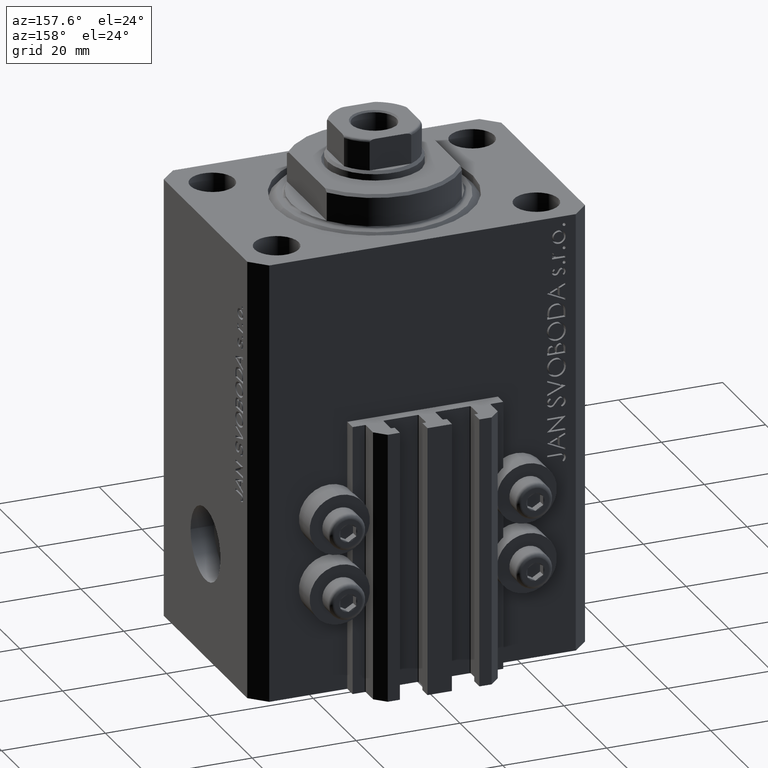
[diagram: clean part render]
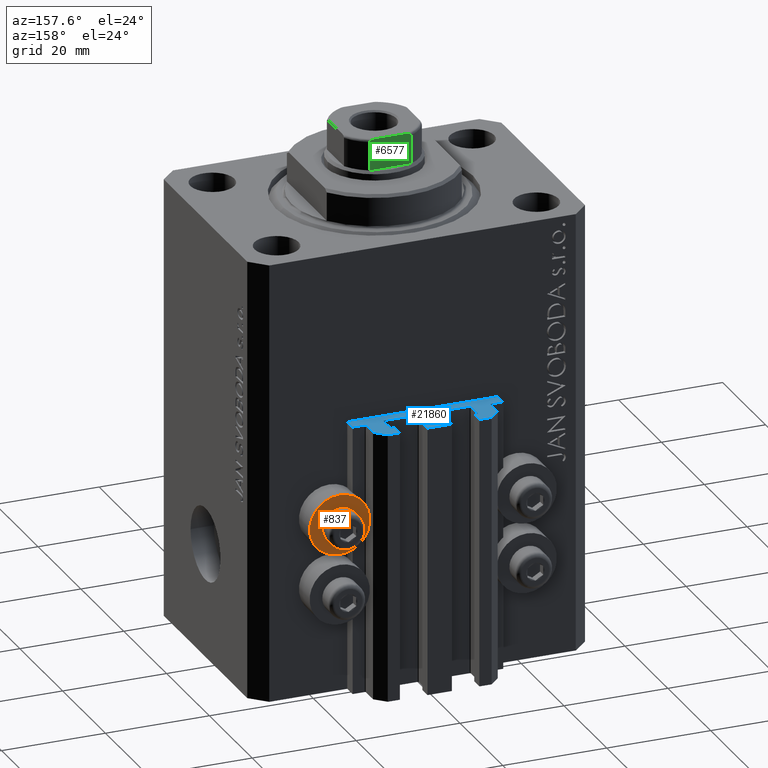
[diagram: same view with three faces highlighted in distinct colors, each labeled with its STEP entity id]
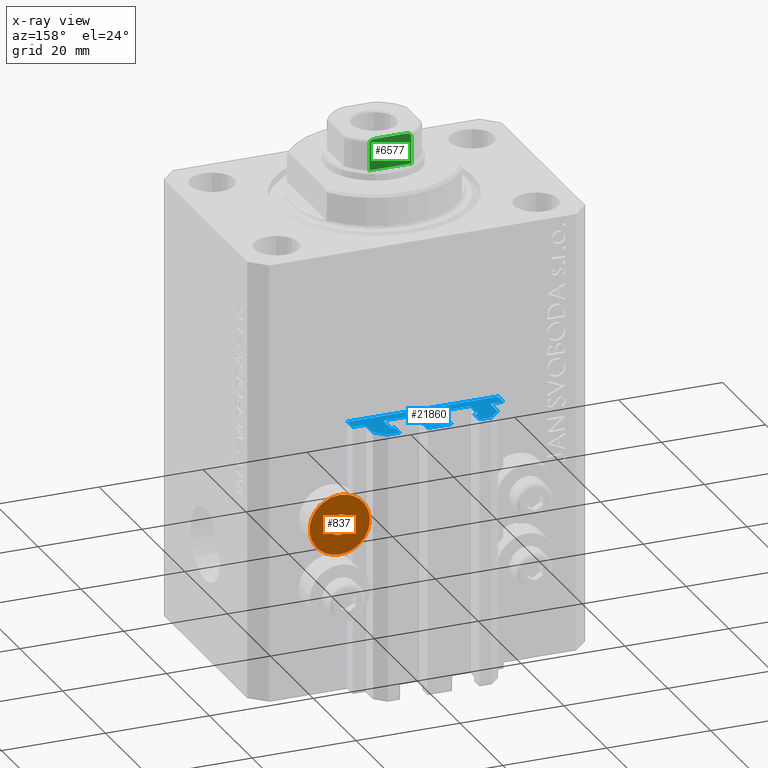
[diagram: x-ray of the same camera — body ghosted, the three highlighted faces saturated]
A machine part, auxiliary view with three faces highlighted in distinct colors.
The next image is the same camera in x-ray (body ghosted, the three faces saturated) — at least one of them is partly hidden behind the body in this view.
Their STEP definitions:

[orange] entity #837 — the highlighted planar face has unit normal (0, -1, 0).
#682 = VERTEX_POINT ( 'NONE', #18957 ) ;
#837 = ADVANCED_FACE ( 'NONE', ( #9585, #28059 ), #35475, .F. ) ;
#1259 = DIRECTION ( 'NONE',  ( 0.000000000000000000, 0.000000000000000000, 1.000000000000000000 ) ) ;
#1571 = CIRCLE ( 'NONE', #38381, 5.799999999999999822 ) ;
#2851 = DIRECTION ( 'NONE',  ( -0.000000000000000000, -1.000000000000000000, -0.000000000000000000 ) ) ;
#3085 = EDGE_LOOP ( 'NONE', ( #6401, #13300 ) ) ;
#3312 = AXIS2_PLACEMENT_3D ( 'NONE', #13878, #46514, #9813 ) ;
#3987 = EDGE_CURVE ( 'NONE', #41161, #45822, #14117, .T. ) ;
#4406 = CARTESIAN_POINT ( 'NONE',  ( 18.00000000000000355, 27.49999999996051514, -52.40000000000000568 ) ) ;
#6401 = ORIENTED_EDGE ( 'NONE', *, *, #3987, .T. ) ;
#9585 = FACE_BOUND ( 'NONE', #3085, .T. ) ;
#9813 = DIRECTION ( 'NONE',  ( -0.000000000000000000, 0.000000000000000000, -1.000000000000000000 ) ) ;
#10055 = AXIS2_PLACEMENT_3D ( 'NONE', #21795, #32574, #11221 ) ;
#11221 = DIRECTION ( 'NONE',  ( 0.000000000000000000, 0.000000000000000000, 1.000000000000000000 ) ) ;
#13300 = ORIENTED_EDGE ( 'NONE', *, *, #44054, .T. ) ;
#13878 = CARTESIAN_POINT ( 'NONE',  ( 12.20000000000000284, 27.49999999996051514, -50.39999999999999858 ) ) ;
#14117 = CIRCLE ( 'NONE', #40913, 2.000000000000001776 ) ;
#16935 = CIRCLE ( 'NONE', #10055, 5.799999999999999822 ) ;
#18957 = CARTESIAN_POINT ( 'NONE',  ( 18.00000000000000355, 27.49999999996051514, -56.20000000000000284 ) ) ;
#20649 = EDGE_CURVE ( 'NONE', #47048, #682, #1571, .T. ) ;
#21795 = CARTESIAN_POINT ( 'NONE',  ( 18.00000000000000355, 27.49999999996051514, -50.39999999999999858 ) ) ;
#24818 = ORIENTED_EDGE ( 'NONE', *, *, #25482, .F. ) ;
#25482 = EDGE_CURVE ( 'NONE', #682, #47048, #16935, .T. ) ;
#25844 = CARTESIAN_POINT ( 'NONE',  ( 18.00000000000000355, 27.49999999996051514, -48.39999999999999858 ) ) ;
#27698 = CARTESIAN_POINT ( 'NONE',  ( 18.00000000000000355, 27.49999999996051514, -50.39999999999999858 ) ) ;
#27840 = CARTESIAN_POINT ( 'NONE',  ( 18.00000000000000355, 27.49999999996051514, -50.39999999999999858 ) ) ;
#27932 = DIRECTION ( 'NONE',  ( 0.000000000000000000, 0.000000000000000000, 1.000000000000000000 ) ) ;
#28059 = FACE_OUTER_BOUND ( 'NONE', #31886, .T. ) ;
#30067 = CARTESIAN_POINT ( 'NONE',  ( 18.00000000000000355, 27.49999999996051514, -50.39999999999999858 ) ) ;
#31886 = EDGE_LOOP ( 'NONE', ( #40732, #24818 ) ) ;
#32574 = DIRECTION ( 'NONE',  ( -0.000000000000000000, -1.000000000000000000, -0.000000000000000000 ) ) ;
#33946 = CARTESIAN_POINT ( 'NONE',  ( 18.00000000000000355, 27.49999999996051514, -44.60000000000000142 ) ) ;
#35475 = PLANE ( 'NONE',  #3312 ) ;
#38381 = AXIS2_PLACEMENT_3D ( 'NONE', #27698, #42078, #27932 ) ;
#40318 = CIRCLE ( 'NONE', #46476, 2.000000000000001776 ) ;
#40732 = ORIENTED_EDGE ( 'NONE', *, *, #20649, .F. ) ;
#40913 = AXIS2_PLACEMENT_3D ( 'NONE', #27840, #2851, #43401 ) ;
#41161 = VERTEX_POINT ( 'NONE', #25844 ) ;
#42078 = DIRECTION ( 'NONE',  ( -0.000000000000000000, -1.000000000000000000, -0.000000000000000000 ) ) ;
#43401 = DIRECTION ( 'NONE',  ( 0.000000000000000000, 0.000000000000000000, 1.000000000000000000 ) ) ;
#44054 = EDGE_CURVE ( 'NONE', #45822, #41161, #40318, .T. ) ;
#44702 = DIRECTION ( 'NONE',  ( -0.000000000000000000, -1.000000000000000000, -0.000000000000000000 ) ) ;
#45822 = VERTEX_POINT ( 'NONE', #4406 ) ;
#46476 = AXIS2_PLACEMENT_3D ( 'NONE', #30067, #44702, #1259 ) ;
#46514 = DIRECTION ( 'NONE',  ( 0.000000000000000000, -1.000000000000000000, -0.000000000000000000 ) ) ;
#47048 = VERTEX_POINT ( 'NONE', #33946 ) ;

[blue] entity #21860 — the highlighted planar face has unit normal (0, 0, 1).
#76 = EDGE_CURVE ( 'NONE', #20158, #46686, #34947, .T. ) ;
#420 = LINE ( 'NONE', #40257, #10322 ) ;
#586 = EDGE_CURVE ( 'NONE', #6469, #2376, #2664, .T. ) ;
#623 = CARTESIAN_POINT ( 'NONE',  ( -12.00000000000000000, 28.49999999999948841, -33.00000000000000000 ) ) ;
#774 = AXIS2_PLACEMENT_3D ( 'NONE', #45008, #29901, #41643 ) ;
#818 = CARTESIAN_POINT ( 'NONE',  ( 2.349999999999999645, 28.09999999999950049, -33.00000000000000000 ) ) ;
#1061 = DIRECTION ( 'NONE',  ( -1.000000000000000000, 0.000000000000000000, 0.000000000000000000 ) ) ;
#1079 = CARTESIAN_POINT ( 'NONE',  ( -7.650000000000000355, 30.49999999999948486, -33.00000000000000000 ) ) ;
#1098 = VERTEX_POINT ( 'NONE', #11927 ) ;
#1505 = ORIENTED_EDGE ( 'NONE', *, *, #31756, .T. ) ;
#1608 = VECTOR ( 'NONE', #29695, 1000.000000000000000 ) ;
#1666 = LINE ( 'NONE', #37907, #47500 ) ;
#1681 = LINE ( 'NONE', #9374, #24178 ) ;
#1703 = LINE ( 'NONE', #23569, #18633 ) ;
#1969 = CARTESIAN_POINT ( 'NONE',  ( -8.199999999999999289, 24.49999999999949551, -33.00000000000000000 ) ) ;
#2216 = CARTESIAN_POINT ( 'NONE',  ( -1.600000000000000755, 24.69999999999949480, -33.00000000000000000 ) ) ;
#2313 = CARTESIAN_POINT ( 'NONE',  ( -12.00000000000000000, 25.19999999999949125, -33.00000000000000000 ) ) ;
#2376 = VERTEX_POINT ( 'NONE', #2313 ) ;
#2600 = FACE_OUTER_BOUND ( 'NONE', #32625, .T. ) ;
#2604 = EDGE_CURVE ( 'NONE', #47329, #18389, #36587, .T. ) ;
#2660 = CARTESIAN_POINT ( 'NONE',  ( -2.350000000000003197, 28.09999999999950049, -33.00000000000000000 ) ) ;
#2664 = LINE ( 'NONE', #46337, #7870 ) ;
#2888 = LINE ( 'NONE', #13925, #40226 ) ;
#4036 = CARTESIAN_POINT ( 'NONE',  ( 9.999999999999994671, 30.49999999999949551, -33.00000000000000000 ) ) ;
#4092 = AXIS2_PLACEMENT_3D ( 'NONE', #22800, #16308, #40770 ) ;
#4107 = EDGE_CURVE ( 'NONE', #11860, #13965, #42474, .T. ) ;
#4183 = ORIENTED_EDGE ( 'NONE', *, *, #34118, .F. ) ;
#4343 = CARTESIAN_POINT ( 'NONE',  ( -14.50000000000000000, 22.49999999999949907, -33.00000000000000000 ) ) ;
#4851 = AXIS2_PLACEMENT_3D ( 'NONE', #26398, #41020, #37413 ) ;
#4955 = DIRECTION ( 'NONE',  ( -5.421010862427496532E-16, -1.000000000000000000, 0.000000000000000000 ) ) ;
#5023 = VERTEX_POINT ( 'NONE', #33834 ) ;
#5159 = DIRECTION ( 'NONE',  ( 1.000000000000000000, 0.000000000000000000, 0.000000000000000000 ) ) ;
#5299 = CARTESIAN_POINT ( 'NONE',  ( -8.400000000000000355, 24.69999999999949480, -33.00000000000000000 ) ) ;
#5934 = CARTESIAN_POINT ( 'NONE',  ( -8.399999999999996803, 27.89999999999948699, -33.00000000000000000 ) ) ;
#5980 = ORIENTED_EDGE ( 'NONE', *, *, #10430, .T. ) ;
#6114 = VECTOR ( 'NONE', #14613, 1000.000000000000000 ) ;
#6131 = EDGE_CURVE ( 'NONE', #24084, #19889, #2888, .T. ) ;
#6265 = DIRECTION ( 'NONE',  ( 0.000000000000000000, -1.000000000000000000, 0.000000000000000000 ) ) ;
#6469 = VERTEX_POINT ( 'NONE', #623 ) ;
#7353 = DIRECTION ( 'NONE',  ( -0.7071067811865472397, -0.7071067811865479058, 0.000000000000000000 ) ) ;
#7504 = CARTESIAN_POINT ( 'NONE',  ( 14.49999999999999822, 24.99999999999950617, -33.00000000000000000 ) ) ;
#7870 = VECTOR ( 'NONE', #6265, 1000.000000000000000 ) ;
#8122 = DIRECTION ( 'NONE',  ( 0.000000000000000000, 0.000000000000000000, 1.000000000000000000 ) ) ;
#8370 = CARTESIAN_POINT ( 'NONE',  ( 8.200000000000001066, 24.49999999999949196, -33.00000000000000000 ) ) ;
#8427 = CIRCLE ( 'NONE', #774, 0.1999999999999987899 ) ;
#8501 = AXIS2_PLACEMENT_3D ( 'NONE', #39767, #46510, #20867 ) ;
#8837 = DIRECTION ( 'NONE',  ( 1.000000000000000000, 0.000000000000000000, 0.000000000000000000 ) ) ;
#8911 = VERTEX_POINT ( 'NONE', #1079 ) ;
#9150 = ORIENTED_EDGE ( 'NONE', *, *, #32219, .T. ) ;
#9193 = DIRECTION ( 'NONE',  ( 1.000000000000000000, 0.000000000000000000, 0.000000000000000000 ) ) ;
#9374 = CARTESIAN_POINT ( 'NONE',  ( 12.00000000000000178, 25.19999999999951257, -33.00000000000000000 ) ) ;
#9644 = VECTOR ( 'NONE', #37100, 1000.000000000000000 ) ;
#10188 = VECTOR ( 'NONE', #38296, 1000.000000000000000 ) ;
#10282 = CARTESIAN_POINT ( 'NONE',  ( 12.00000000000000355, 25.19999999999951257, -33.00000000000000000 ) ) ;
#10322 = VECTOR ( 'NONE', #22287, 1000.000000000000000 ) ;
#10421 = DIRECTION ( 'NONE',  ( 1.000000000000000000, 0.000000000000000000, 0.000000000000000000 ) ) ;
#10430 = EDGE_CURVE ( 'NONE', #39637, #17830, #42488, .T. ) ;
#10442 = ORIENTED_EDGE ( 'NONE', *, *, #23414, .T. ) ;
#10560 = VERTEX_POINT ( 'NONE', #34454 ) ;
#11033 = VECTOR ( 'NONE', #19148, 1000.000000000000000 ) ;
#11153 = VERTEX_POINT ( 'NONE', #21445 ) ;
#11203 = LINE ( 'NONE', #33250, #16521 ) ;
#11380 = ORIENTED_EDGE ( 'NONE', *, *, #27544, .F. ) ;
#11501 = CARTESIAN_POINT ( 'NONE',  ( -12.20000000000000107, 24.99999999999948841, -33.00000000000000000 ) ) ;
#11860 = VERTEX_POINT ( 'NONE', #10282 ) ;
#11927 = CARTESIAN_POINT ( 'NONE',  ( -8.199999999999997513, 28.09999999999948628, -33.00000000000000000 ) ) ;
#12265 = VERTEX_POINT ( 'NONE', #34354 ) ;
#12307 = CIRCLE ( 'NONE', #31456, 0.1999999999999987899 ) ;
#12365 = ORIENTED_EDGE ( 'NONE', *, *, #26472, .T. ) ;
#12440 = VERTEX_POINT ( 'NONE', #22566 ) ;
#13179 = DIRECTION ( 'NONE',  ( 6.938893903907212600E-16, 1.000000000000000000, 0.000000000000000000 ) ) ;
#13186 = CARTESIAN_POINT ( 'NONE',  ( -1.800000000000000933, 24.49999999999949551, -33.00000000000000000 ) ) ;
#13547 = EDGE_CURVE ( 'NONE', #14323, #24084, #18010, .T. ) ;
#13605 = VERTEX_POINT ( 'NONE', #8370 ) ;
#13867 = ORIENTED_EDGE ( 'NONE', *, *, #39152, .T. ) ;
#13925 = CARTESIAN_POINT ( 'NONE',  ( -14.50000000000000000, 24.99999999999949196, -33.00000000000000000 ) ) ;
#13965 = VERTEX_POINT ( 'NONE', #40941 ) ;
#14244 = VERTEX_POINT ( 'NONE', #15229 ) ;
#14323 = VERTEX_POINT ( 'NONE', #23631 ) ;
#14479 = DIRECTION ( 'NONE',  ( -1.000000000000000000, -1.476360405086644852E-15, 0.000000000000000000 ) ) ;
#14548 = VERTEX_POINT ( 'NONE', #18538 ) ;
#14613 = DIRECTION ( 'NONE',  ( -1.000000000000000000, 0.000000000000000000, 0.000000000000000000 ) ) ;
#14808 = CARTESIAN_POINT ( 'NONE',  ( 1.600000000000000533, 24.69999999999949480, -33.00000000000000000 ) ) ;
#15088 = CARTESIAN_POINT ( 'NONE',  ( 8.400000000000000355, 24.69999999999949125, -33.00000000000000000 ) ) ;
#15229 = CARTESIAN_POINT ( 'NONE',  ( -10.00000000000000000, 30.49999999999948841, -33.00000000000000000 ) ) ;
#15301 = DIRECTION ( 'NONE',  ( 0.000000000000000000, 0.000000000000000000, 1.000000000000000000 ) ) ;
#15390 = VERTEX_POINT ( 'NONE', #1969 ) ;
#15443 = CARTESIAN_POINT ( 'NONE',  ( 12.00000000000000178, 28.49999999999950973, -33.00000000000000000 ) ) ;
#15540 = LINE ( 'NONE', #22515, #11033 ) ;
#15615 = VECTOR ( 'NONE', #18599, 1000.000000000000000 ) ;
#16308 = DIRECTION ( 'NONE',  ( 0.000000000000000000, 0.000000000000000000, 1.000000000000000000 ) ) ;
#16490 = VECTOR ( 'NONE', #19961, 1000.000000000000000 ) ;
#16521 = VECTOR ( 'NONE', #28970, 1000.000000000000000 ) ;
#16977 = VECTOR ( 'NONE', #1061, 1000.000000000000000 ) ;
#17299 = CARTESIAN_POINT ( 'NONE',  ( -1.600000000000003197, 27.89999999999950120, -33.00000000000000000 ) ) ;
#17376 = VERTEX_POINT ( 'NONE', #29632 ) ;
#17383 = AXIS2_PLACEMENT_3D ( 'NONE', #34510, #8122, #8837 ) ;
#17502 = ORIENTED_EDGE ( 'NONE', *, *, #32698, .T. ) ;
#17777 = CARTESIAN_POINT ( 'NONE',  ( -8.399999999999998579, 24.69999999999949480, -33.00000000000000000 ) ) ;
#17830 = VERTEX_POINT ( 'NONE', #34343 ) ;
#18010 = LINE ( 'NONE', #11501, #22005 ) ;
#18222 = CARTESIAN_POINT ( 'NONE',  ( 8.200000000000001066, 24.49999999999949196, -33.00000000000000000 ) ) ;
#18234 = ORIENTED_EDGE ( 'NONE', *, *, #40669, .T. ) ;
#18335 = ORIENTED_EDGE ( 'NONE', *, *, #19576, .T. ) ;
#18389 = VERTEX_POINT ( 'NONE', #36640 ) ;
#18538 = CARTESIAN_POINT ( 'NONE',  ( 1.800000000000000933, 28.09999999999950049, -33.00000000000000000 ) ) ;
#18599 = DIRECTION ( 'NONE',  ( 0.000000000000000000, 1.000000000000000000, 0.000000000000000000 ) ) ;
#18633 = VECTOR ( 'NONE', #38182, 1000.000000000000000 ) ;
#18764 = VERTEX_POINT ( 'NONE', #15088 ) ;
#18799 = LINE ( 'NONE', #40609, #38956 ) ;
#18807 = EDGE_CURVE ( 'NONE', #13605, #17376, #26130, .T. ) ;
#18902 = VERTEX_POINT ( 'NONE', #4036 ) ;
#18912 = CIRCLE ( 'NONE', #17383, 0.2000000000000005107 ) ;
#19048 = LINE ( 'NONE', #41107, #38206 ) ;
#19148 = DIRECTION ( 'NONE',  ( 1.000000000000000000, 0.000000000000000000, 0.000000000000000000 ) ) ;
#19348 = EDGE_CURVE ( 'NONE', #32375, #15390, #8427, .T. ) ;
#19576 = EDGE_CURVE ( 'NONE', #37319, #18902, #33664, .T. ) ;
#19677 = ORIENTED_EDGE ( 'NONE', *, *, #42196, .T. ) ;
#19889 = VERTEX_POINT ( 'NONE', #4343 ) ;
#19921 = LINE ( 'NONE', #34777, #43028 ) ;
#19961 = DIRECTION ( 'NONE',  ( 1.084202172485506406E-15, 1.000000000000000000, 0.000000000000000000 ) ) ;
#20008 = CARTESIAN_POINT ( 'NONE',  ( -1.800000000000000933, 27.89999999999950120, -33.00000000000000000 ) ) ;
#20029 = CARTESIAN_POINT ( 'NONE',  ( -14.50000000000000000, 24.99999999999949196, -33.00000000000000000 ) ) ;
#20158 = VERTEX_POINT ( 'NONE', #17299 ) ;
#20204 = VECTOR ( 'NONE', #31460, 1000.000000000000000 ) ;
#20244 = VECTOR ( 'NONE', #4955, 1000.000000000000000 ) ;
#20569 = EDGE_CURVE ( 'NONE', #13605, #18764, #12307, .T. ) ;
#20867 = DIRECTION ( 'NONE',  ( 1.000000000000000000, 0.000000000000000000, -0.000000000000000000 ) ) ;
#21445 = CARTESIAN_POINT ( 'NONE',  ( 14.49999999999999822, 24.99999999999950617, -33.00000000000000000 ) ) ;
#21565 = PLANE ( 'NONE',  #8501 ) ;
#21720 = ORIENTED_EDGE ( 'NONE', *, *, #35700, .T. ) ;
#21765 = CIRCLE ( 'NONE', #4092, 0.1999999999999981515 ) ;
#21801 = AXIS2_PLACEMENT_3D ( 'NONE', #35489, #28544, #25182 ) ;
#21809 = DIRECTION ( 'NONE',  ( 0.000000000000000000, -1.000000000000000000, 0.000000000000000000 ) ) ;
#21860 = ADVANCED_FACE ( 'NONE', ( #2600 ), #21565, .T. ) ;
#22005 = VECTOR ( 'NONE', #47255, 1000.000000000000000 ) ;
#22103 = ORIENTED_EDGE ( 'NONE', *, *, #34564, .T. ) ;
#22158 = DIRECTION ( 'NONE',  ( -1.000000000000000000, 0.000000000000000000, 0.000000000000000000 ) ) ;
#22287 = DIRECTION ( 'NONE',  ( -1.000000000000000000, 1.476360405086644852E-15, 0.000000000000000000 ) ) ;
#22515 = CARTESIAN_POINT ( 'NONE',  ( -8.199999999999997513, 28.09999999999948628, -33.00000000000000000 ) ) ;
#22566 = CARTESIAN_POINT ( 'NONE',  ( 1.599999999999999645, 24.69999999999949480, -33.00000000000000000 ) ) ;
#22621 = VECTOR ( 'NONE', #7353, 999.9999999999998863 ) ;
#22800 = CARTESIAN_POINT ( 'NONE',  ( 1.800000000000000933, 27.89999999999950120, -33.00000000000000000 ) ) ;
#23126 = DIRECTION ( 'NONE',  ( 1.000000000000000000, 0.000000000000000000, 0.000000000000000000 ) ) ;
#23414 = EDGE_CURVE ( 'NONE', #11153, #13965, #25768, .T. ) ;
#23569 = CARTESIAN_POINT ( 'NONE',  ( 7.649999999999995026, 30.49999999999949196, -33.00000000000000000 ) ) ;
#23631 = CARTESIAN_POINT ( 'NONE',  ( -12.20000000000000107, 24.99999999999948841, -33.00000000000000000 ) ) ;
#23673 = EDGE_CURVE ( 'NONE', #41270, #8911, #1666, .T. ) ;
#24084 = VERTEX_POINT ( 'NONE', #20029 ) ;
#24175 = CARTESIAN_POINT ( 'NONE',  ( 14.49999999999999645, 22.49999999999949907, -33.00000000000000000 ) ) ;
#24178 = VECTOR ( 'NONE', #41515, 1000.000000000000000 ) ;
#24801 = CARTESIAN_POINT ( 'NONE',  ( 1.600000000000000533, 27.89999999999950120, -33.00000000000000000 ) ) ;
#24806 = CARTESIAN_POINT ( 'NONE',  ( 12.00000000000000178, 28.49999999999950973, -33.00000000000000000 ) ) ;
#24852 = VERTEX_POINT ( 'NONE', #28466 ) ;
#25182 = DIRECTION ( 'NONE',  ( 1.000000000000000000, 0.000000000000000000, 0.000000000000000000 ) ) ;
#25311 = ORIENTED_EDGE ( 'NONE', *, *, #13547, .T. ) ;
#25563 = EDGE_CURVE ( 'NONE', #12440, #45212, #44091, .T. ) ;
#25768 = LINE ( 'NONE', #7504, #43681 ) ;
#26069 = LINE ( 'NONE', #40209, #22621 ) ;
#26084 = CARTESIAN_POINT ( 'NONE',  ( 1.800000000000000933, 28.09999999999949694, -33.00000000000000000 ) ) ;
#26130 = LINE ( 'NONE', #18222, #6114 ) ;
#26393 = VERTEX_POINT ( 'NONE', #13186 ) ;
#26398 = CARTESIAN_POINT ( 'NONE',  ( -8.199999999999997513, 27.89999999999948699, -33.00000000000000000 ) ) ;
#26472 = EDGE_CURVE ( 'NONE', #24852, #37956, #43394, .T. ) ;
#26700 = AXIS2_PLACEMENT_3D ( 'NONE', #38504, #38036, #5159 ) ;
#26731 = CARTESIAN_POINT ( 'NONE',  ( 8.200000000000001066, 24.69999999999949125, -33.00000000000000000 ) ) ;
#26855 = EDGE_CURVE ( 'NONE', #32811, #11153, #19921, .T. ) ;
#27488 = EDGE_CURVE ( 'NONE', #26393, #15390, #45214, .T. ) ;
#27544 = EDGE_CURVE ( 'NONE', #12440, #17376, #35351, .T. ) ;
#27579 = ORIENTED_EDGE ( 'NONE', *, *, #26855, .T. ) ;
#28044 = ORIENTED_EDGE ( 'NONE', *, *, #44968, .F. ) ;
#28466 = CARTESIAN_POINT ( 'NONE',  ( -2.350000000000003197, 30.49999999999949907, -33.00000000000000000 ) ) ;
#28544 = DIRECTION ( 'NONE',  ( 0.000000000000000000, 0.000000000000000000, 1.000000000000000000 ) ) ;
#28970 = DIRECTION ( 'NONE',  ( 1.000000000000000000, 0.000000000000000000, 0.000000000000000000 ) ) ;
#29434 = ORIENTED_EDGE ( 'NONE', *, *, #76, .T. ) ;
#29446 = LINE ( 'NONE', #26084, #9644 ) ;
#29485 = EDGE_CURVE ( 'NONE', #20158, #12265, #43840, .T. ) ;
#29509 = ORIENTED_EDGE ( 'NONE', *, *, #20569, .F. ) ;
#29632 = CARTESIAN_POINT ( 'NONE',  ( 1.800000000000000933, 24.49999999999949196, -33.00000000000000000 ) ) ;
#29695 = DIRECTION ( 'NONE',  ( 0.000000000000000000, 1.000000000000000000, 0.000000000000000000 ) ) ;
#29854 = ORIENTED_EDGE ( 'NONE', *, *, #46335, .F. ) ;
#29901 = DIRECTION ( 'NONE',  ( 0.000000000000000000, 0.000000000000000000, 1.000000000000000000 ) ) ;
#29908 = VECTOR ( 'NONE', #44711, 1000.000000000000000 ) ;
#29995 = DIRECTION ( 'NONE',  ( 0.000000000000000000, 1.000000000000000000, 0.000000000000000000 ) ) ;
#30342 = CARTESIAN_POINT ( 'NONE',  ( -1.800000000000000933, 24.49999999999949551, -33.00000000000000000 ) ) ;
#30735 = CARTESIAN_POINT ( 'NONE',  ( 7.649999999999995914, 28.09999999999950404, -33.00000000000000000 ) ) ;
#30786 = DIRECTION ( 'NONE',  ( 0.000000000000000000, 0.000000000000000000, 1.000000000000000000 ) ) ;
#31189 = ORIENTED_EDGE ( 'NONE', *, *, #23673, .T. ) ;
#31456 = AXIS2_PLACEMENT_3D ( 'NONE', #26731, #44959, #37046 ) ;
#31460 = DIRECTION ( 'NONE',  ( 1.000000000000000000, -6.308085367188365195E-15, 0.000000000000000000 ) ) ;
#31756 = EDGE_CURVE ( 'NONE', #37956, #12265, #35292, .T. ) ;
#32219 = EDGE_CURVE ( 'NONE', #10560, #39637, #1703, .T. ) ;
#32375 = VERTEX_POINT ( 'NONE', #17777 ) ;
#32500 = CIRCLE ( 'NONE', #33239, 0.2000000000000005107 ) ;
#32625 = EDGE_LOOP ( 'NONE', ( #38761, #39694, #27579, #10442, #35032, #18234, #18335, #34536, #9150, #5980, #44333, #17502, #29509, #39467, #11380, #43375, #35247, #19677, #41986, #28044, #12365, #1505, #33573, #29434, #29854, #40874, #39660, #13867, #33579, #39780, #31189, #22103, #21720, #35732, #4183, #25311 ) ) ;
#32698 = EDGE_CURVE ( 'NONE', #5023, #18764, #37830, .T. ) ;
#32806 = CIRCLE ( 'NONE', #26700, 0.1999999999999994282 ) ;
#32811 = VERTEX_POINT ( 'NONE', #24175 ) ;
#33239 = AXIS2_PLACEMENT_3D ( 'NONE', #33760, #15301, #34488 ) ;
#33249 = EDGE_CURVE ( 'NONE', #14548, #45212, #21765, .T. ) ;
#33250 = CARTESIAN_POINT ( 'NONE',  ( -14.50000000000000000, 22.49999999999949907, -33.00000000000000000 ) ) ;
#33286 = EDGE_CURVE ( 'NONE', #1098, #34292, #37056, .T. ) ;
#33573 = ORIENTED_EDGE ( 'NONE', *, *, #29485, .F. ) ;
#33579 = ORIENTED_EDGE ( 'NONE', *, *, #33286, .F. ) ;
#33664 = LINE ( 'NONE', #15443, #29908 ) ;
#33760 = CARTESIAN_POINT ( 'NONE',  ( -12.20000000000000107, 25.19999999999949125, -33.00000000000000000 ) ) ;
#33834 = CARTESIAN_POINT ( 'NONE',  ( 8.400000000000000355, 27.89999999999950475, -33.00000000000000000 ) ) ;
#34118 = EDGE_CURVE ( 'NONE', #14323, #2376, #32500, .T. ) ;
#34210 = EDGE_CURVE ( 'NONE', #1098, #41270, #15540, .T. ) ;
#34292 = VERTEX_POINT ( 'NONE', #5934 ) ;
#34343 = CARTESIAN_POINT ( 'NONE',  ( 8.200000000000001066, 28.09999999999950759, -33.00000000000000000 ) ) ;
#34354 = CARTESIAN_POINT ( 'NONE',  ( -1.800000000000000933, 28.09999999999949694, -33.00000000000000000 ) ) ;
#34454 = CARTESIAN_POINT ( 'NONE',  ( 7.649999999999995026, 30.49999999999949196, -33.00000000000000000 ) ) ;
#34488 = DIRECTION ( 'NONE',  ( 1.000000000000000000, 0.000000000000000000, 0.000000000000000000 ) ) ;
#34510 = CARTESIAN_POINT ( 'NONE',  ( 8.200000000000001066, 27.89999999999950475, -33.00000000000000000 ) ) ;
#34536 = ORIENTED_EDGE ( 'NONE', *, *, #46530, .T. ) ;
#34564 = EDGE_CURVE ( 'NONE', #8911, #14244, #420, .T. ) ;
#34777 = CARTESIAN_POINT ( 'NONE',  ( 14.49999999999999645, 22.49999999999949907, -33.00000000000000000 ) ) ;
#34947 = LINE ( 'NONE', #35175, #10188 ) ;
#35032 = ORIENTED_EDGE ( 'NONE', *, *, #4107, .F. ) ;
#35175 = CARTESIAN_POINT ( 'NONE',  ( -1.600000000000000533, 27.89999999999950120, -33.00000000000000000 ) ) ;
#35247 = ORIENTED_EDGE ( 'NONE', *, *, #33249, .F. ) ;
#35292 = LINE ( 'NONE', #2660, #20204 ) ;
#35351 = CIRCLE ( 'NONE', #40744, 0.2000000000000016209 ) ;
#35423 = AXIS2_PLACEMENT_3D ( 'NONE', #20008, #30786, #9193 ) ;
#35489 = CARTESIAN_POINT ( 'NONE',  ( 12.20000000000000284, 25.19999999999950546, -33.00000000000000000 ) ) ;
#35700 = EDGE_CURVE ( 'NONE', #14244, #6469, #26069, .T. ) ;
#35732 = ORIENTED_EDGE ( 'NONE', *, *, #586, .T. ) ;
#36587 = LINE ( 'NONE', #818, #15615 ) ;
#36640 = CARTESIAN_POINT ( 'NONE',  ( 2.349999999999999645, 30.49999999999949907, -33.00000000000000000 ) ) ;
#37046 = DIRECTION ( 'NONE',  ( 1.000000000000000000, 0.000000000000000000, 0.000000000000000000 ) ) ;
#37056 = CIRCLE ( 'NONE', #4851, 0.1999999999999987899 ) ;
#37100 = DIRECTION ( 'NONE',  ( 1.000000000000000000, 6.308085367188405427E-15, 0.000000000000000000 ) ) ;
#37319 = VERTEX_POINT ( 'NONE', #24806 ) ;
#37413 = DIRECTION ( 'NONE',  ( 1.000000000000000000, 0.000000000000000000, 0.000000000000000000 ) ) ;
#37830 = LINE ( 'NONE', #44089, #20244 ) ;
#37907 = CARTESIAN_POINT ( 'NONE',  ( -7.650000000000000355, 28.09999999999948628, -33.00000000000000000 ) ) ;
#37956 = VERTEX_POINT ( 'NONE', #46074 ) ;
#38036 = DIRECTION ( 'NONE',  ( 0.000000000000000000, 0.000000000000000000, 1.000000000000000000 ) ) ;
#38182 = DIRECTION ( 'NONE',  ( 3.614007241618365534E-16, -1.000000000000000000, 0.000000000000000000 ) ) ;
#38206 = VECTOR ( 'NONE', #23126, 1000.000000000000000 ) ;
#38296 = DIRECTION ( 'NONE',  ( -6.776263578034385456E-17, -1.000000000000000000, 0.000000000000000000 ) ) ;
#38504 = CARTESIAN_POINT ( 'NONE',  ( -1.800000000000000933, 24.69999999999949480, -33.00000000000000000 ) ) ;
#38761 = ORIENTED_EDGE ( 'NONE', *, *, #6131, .T. ) ;
#38956 = VECTOR ( 'NONE', #14479, 1000.000000000000000 ) ;
#39152 = EDGE_CURVE ( 'NONE', #32375, #34292, #42490, .T. ) ;
#39467 = ORIENTED_EDGE ( 'NONE', *, *, #18807, .T. ) ;
#39637 = VERTEX_POINT ( 'NONE', #45259 ) ;
#39660 = ORIENTED_EDGE ( 'NONE', *, *, #19348, .F. ) ;
#39694 = ORIENTED_EDGE ( 'NONE', *, *, #41150, .T. ) ;
#39767 = CARTESIAN_POINT ( 'NONE',  ( 12.20000000000000284, 25.19999999999950546, -33.00000000000000000 ) ) ;
#39780 = ORIENTED_EDGE ( 'NONE', *, *, #34210, .T. ) ;
#40015 = CARTESIAN_POINT ( 'NONE',  ( -2.350000000000003197, 30.49999999999949907, -33.00000000000000000 ) ) ;
#40056 = DIRECTION ( 'NONE',  ( 0.000000000000000000, -1.000000000000000000, 0.000000000000000000 ) ) ;
#40209 = CARTESIAN_POINT ( 'NONE',  ( -10.00000000000000000, 30.49999999999948841, -33.00000000000000000 ) ) ;
#40226 = VECTOR ( 'NONE', #40056, 1000.000000000000000 ) ;
#40257 = CARTESIAN_POINT ( 'NONE',  ( -7.650000000000000355, 30.49999999999948486, -33.00000000000000000 ) ) ;
#40609 = CARTESIAN_POINT ( 'NONE',  ( 9.999999999999994671, 30.49999999999949551, -33.00000000000000000 ) ) ;
#40669 = EDGE_CURVE ( 'NONE', #11860, #37319, #1681, .T. ) ;
#40744 = AXIS2_PLACEMENT_3D ( 'NONE', #45702, #42573, #10421 ) ;
#40770 = DIRECTION ( 'NONE',  ( 1.000000000000000000, 0.000000000000000000, 0.000000000000000000 ) ) ;
#40874 = ORIENTED_EDGE ( 'NONE', *, *, #27488, .T. ) ;
#40941 = CARTESIAN_POINT ( 'NONE',  ( 12.20000000000000284, 24.99999999999950617, -33.00000000000000000 ) ) ;
#41020 = DIRECTION ( 'NONE',  ( 0.000000000000000000, 0.000000000000000000, 1.000000000000000000 ) ) ;
#41107 = CARTESIAN_POINT ( 'NONE',  ( -2.350000000000003197, 30.49999999999949907, -33.00000000000000000 ) ) ;
#41150 = EDGE_CURVE ( 'NONE', #19889, #32811, #11203, .T. ) ;
#41270 = VERTEX_POINT ( 'NONE', #41409 ) ;
#41409 = CARTESIAN_POINT ( 'NONE',  ( -7.650000000000000355, 28.09999999999948628, -33.00000000000000000 ) ) ;
#41480 = VECTOR ( 'NONE', #21809, 1000.000000000000000 ) ;
#41515 = DIRECTION ( 'NONE',  ( 0.000000000000000000, 1.000000000000000000, 0.000000000000000000 ) ) ;
#41643 = DIRECTION ( 'NONE',  ( 1.000000000000000000, 0.000000000000000000, 0.000000000000000000 ) ) ;
#41986 = ORIENTED_EDGE ( 'NONE', *, *, #2604, .T. ) ;
#42196 = EDGE_CURVE ( 'NONE', #14548, #47329, #29446, .T. ) ;
#42474 = CIRCLE ( 'NONE', #21801, 0.1999999999999987899 ) ;
#42488 = LINE ( 'NONE', #30735, #43916 ) ;
#42490 = LINE ( 'NONE', #5299, #16490 ) ;
#42573 = DIRECTION ( 'NONE',  ( 0.000000000000000000, 0.000000000000000000, 1.000000000000000000 ) ) ;
#43028 = VECTOR ( 'NONE', #13179, 1000.000000000000000 ) ;
#43375 = ORIENTED_EDGE ( 'NONE', *, *, #25563, .T. ) ;
#43394 = LINE ( 'NONE', #40015, #41480 ) ;
#43681 = VECTOR ( 'NONE', #22158, 1000.000000000000000 ) ;
#43840 = CIRCLE ( 'NONE', #35423, 0.1999999999999979294 ) ;
#43916 = VECTOR ( 'NONE', #45367, 1000.000000000000000 ) ;
#44089 = CARTESIAN_POINT ( 'NONE',  ( 8.400000000000000355, 27.89999999999950475, -33.00000000000000000 ) ) ;
#44091 = LINE ( 'NONE', #14808, #1608 ) ;
#44276 = EDGE_CURVE ( 'NONE', #5023, #17830, #18912, .T. ) ;
#44333 = ORIENTED_EDGE ( 'NONE', *, *, #44276, .F. ) ;
#44699 = CARTESIAN_POINT ( 'NONE',  ( 2.349999999999999645, 28.09999999999950049, -33.00000000000000000 ) ) ;
#44711 = DIRECTION ( 'NONE',  ( -0.7071067811865507924, 0.7071067811865441310, 0.000000000000000000 ) ) ;
#44959 = DIRECTION ( 'NONE',  ( 0.000000000000000000, 0.000000000000000000, 1.000000000000000000 ) ) ;
#44968 = EDGE_CURVE ( 'NONE', #24852, #18389, #19048, .T. ) ;
#45008 = CARTESIAN_POINT ( 'NONE',  ( -8.199999999999999289, 24.69999999999949480, -33.00000000000000000 ) ) ;
#45212 = VERTEX_POINT ( 'NONE', #24801 ) ;
#45214 = LINE ( 'NONE', #30342, #16977 ) ;
#45259 = CARTESIAN_POINT ( 'NONE',  ( 7.649999999999995914, 28.09999999999950404, -33.00000000000000000 ) ) ;
#45367 = DIRECTION ( 'NONE',  ( 1.000000000000000000, 6.308085367188338373E-15, 0.000000000000000000 ) ) ;
#45702 = CARTESIAN_POINT ( 'NONE',  ( 1.800000000000000933, 24.69999999999949480, -33.00000000000000000 ) ) ;
#46074 = CARTESIAN_POINT ( 'NONE',  ( -2.350000000000003197, 28.09999999999950049, -33.00000000000000000 ) ) ;
#46335 = EDGE_CURVE ( 'NONE', #26393, #46686, #32806, .T. ) ;
#46337 = CARTESIAN_POINT ( 'NONE',  ( -12.00000000000000000, 28.49999999999948841, -33.00000000000000000 ) ) ;
#46510 = DIRECTION ( 'NONE',  ( 0.000000000000000000, 0.000000000000000000, 1.000000000000000000 ) ) ;
#46530 = EDGE_CURVE ( 'NONE', #18902, #10560, #18799, .T. ) ;
#46686 = VERTEX_POINT ( 'NONE', #2216 ) ;
#47255 = DIRECTION ( 'NONE',  ( -1.000000000000000000, 1.508455196501571429E-15, 0.000000000000000000 ) ) ;
#47329 = VERTEX_POINT ( 'NONE', #44699 ) ;
#47500 = VECTOR ( 'NONE', #29995, 1000.000000000000000 ) ;

[green] entity #6577 — the highlighted planar face has unit normal (0, -1, 0).
#1314 = VERTEX_POINT ( 'NONE', #16131 ) ;
#2169 = CARTESIAN_POINT ( 'NONE',  ( -4.000000000000000888, 7.500000000000000000, -0.001000000000001000089 ) ) ;
#3354 = CARTESIAN_POINT ( 'NONE',  ( 3.975735230428943279, 7.500000000000000000, 91.71773041319781328 ) ) ;
#3591 = CARTESIAN_POINT ( 'NONE',  ( 3.020030562295405119, 7.500000000000000000, 92.10000000000002274 ) ) ;
#3756 = DIRECTION ( 'NONE',  ( 1.000000000000000000, 5.782411586589357392E-17, 0.000000000000000000 ) ) ;
#6577 = ADVANCED_FACE ( 'NONE', ( #40230 ), #44314, .F. ) ;
#7373 = CARTESIAN_POINT ( 'NONE',  ( -7.499999999999998224, 7.499999999999999112, 92.10000000000000853 ) ) ;
#8399 = VECTOR ( 'NONE', #37961, 1000.000000000000000 ) ;
#8486 = CARTESIAN_POINT ( 'NONE',  ( 4.000000000000001776, 7.500000000000000000, 91.60000000000000853 ) ) ;
#9660 = CARTESIAN_POINT ( 'NONE',  ( -4.000000000000000888, 7.500000000000001776, 91.66026396800440068 ) ) ;
#10123 = CARTESIAN_POINT ( 'NONE',  ( -3.708875323752956810, 7.499999999999997335, 91.94930352055462208 ) ) ;
#10344 = CARTESIAN_POINT ( 'NONE',  ( 2.783882181415012980, 7.500000000000000000, 92.10000000000000853 ) ) ;
#10365 = CARTESIAN_POINT ( 'NONE',  ( -3.020011215871897914, 7.500000000000000000, 92.10000000000000853 ) ) ;
#11044 = CARTESIAN_POINT ( 'NONE',  ( 3.255843148148206190, 7.500000000000001776, 92.08262378726874431 ) ) ;
#11597 = EDGE_CURVE ( 'NONE', #1314, #45852, #42733, .T. ) ;
#12488 = LINE ( 'NONE', #2169, #28688 ) ;
#13695 = CARTESIAN_POINT ( 'NONE',  ( 3.857502111569846459, 7.500000000000004441, 91.85173359969215312 ) ) ;
#13916 = LINE ( 'NONE', #39109, #23042 ) ;
#16131 = CARTESIAN_POINT ( 'NONE',  ( 2.783882181415012980, 7.500000000000000000, 92.10000000000000853 ) ) ;
#17089 = CARTESIAN_POINT ( 'NONE',  ( -2.783882181415013868, 7.499999999999999112, 92.10000000000000853 ) ) ;
#18016 = CARTESIAN_POINT ( 'NONE',  ( 4.000000000000211386, 7.500000000000000000, 91.66034186205212109 ) ) ;
#18164 = ORIENTED_EDGE ( 'NONE', *, *, #20120, .T. ) ;
#18638 = DIRECTION ( 'NONE',  ( -1.000000000000000000, -5.782411586589357392E-17, -0.000000000000000000 ) ) ;
#18692 = EDGE_CURVE ( 'NONE', #1314, #31688, #34114, .T. ) ;
#19705 = DIRECTION ( 'NONE',  ( -0.000000000000000000, -0.000000000000000000, 1.000000000000000000 ) ) ;
#20120 = EDGE_CURVE ( 'NONE', #35494, #41212, #13916, .T. ) ;
#20923 = CARTESIAN_POINT ( 'NONE',  ( 3.904072061442345198, 7.500000000000001776, 91.81287056890812437 ) ) ;
#21182 = CARTESIAN_POINT ( 'NONE',  ( -3.597188386589929454, 7.500000000000000888, 91.99052843393242540 ) ) ;
#22025 = DIRECTION ( 'NONE',  ( 5.782411586589357392E-17, -1.000000000000000000, 0.000000000000000000 ) ) ;
#22564 = LINE ( 'NONE', #40767, #28490 ) ;
#23042 = VECTOR ( 'NONE', #18638, 1000.000000000000000 ) ;
#23065 = ORIENTED_EDGE ( 'NONE', *, *, #18692, .F. ) ;
#24753 = ORIENTED_EDGE ( 'NONE', *, *, #26711, .F. ) ;
#25688 = CARTESIAN_POINT ( 'NONE',  ( 4.000000000000001776, 7.500000000000000000, 91.60000000000000853 ) ) ;
#26711 = EDGE_CURVE ( 'NONE', #35494, #45852, #22564, .T. ) ;
#26931 = CARTESIAN_POINT ( 'NONE',  ( -7.499999999999998224, 7.499999999999999112, 92.10000000000000853 ) ) ;
#27026 = ORIENTED_EDGE ( 'NONE', *, *, #37920, .T. ) ;
#27861 = EDGE_CURVE ( 'NONE', #29274, #31688, #32132, .T. ) ;
#28366 = CARTESIAN_POINT ( 'NONE',  ( -3.976018255615928254, 7.499999999999998224, 91.71726199300996996 ) ) ;
#28490 = VECTOR ( 'NONE', #44381, 1000.000000000000000 ) ;
#28603 = CARTESIAN_POINT ( 'NONE',  ( -3.904208668232357127, 7.500000000000000888, 91.81278134537498659 ) ) ;
#28688 = VECTOR ( 'NONE', #19705, 1000.000000000000000 ) ;
#29274 = VERTEX_POINT ( 'NONE', #34198 ) ;
#29281 = CARTESIAN_POINT ( 'NONE',  ( 3.598393151503780363, 7.499999999999999112, 91.99012191927410242 ) ) ;
#30745 = CARTESIAN_POINT ( 'NONE',  ( -2.783882181415013868, 7.499999999999999112, 92.10000000000000853 ) ) ;
#31480 = CARTESIAN_POINT ( 'NONE',  ( -3.858352854028597623, 7.499999999999999112, 91.85117951603155007 ) ) ;
#31688 = VERTEX_POINT ( 'NONE', #30745 ) ;
#31953 = CARTESIAN_POINT ( 'NONE',  ( -4.000000000000000888, 7.500000000000000000, 91.60000000000000853 ) ) ;
#32132 = B_SPLINE_CURVE_WITH_KNOTS ( 'NONE', 3,
 ( #31953, #9660, #28366, #28603, #31480, #10123, #21182, #46111, #10365, #17089 ),
 .UNSPECIFIED., .F., .F.,
 ( 4, 2, 2, 2, 4 ),
 ( 0.000000000000000000, 0.0001779688448868754422, 0.0003559376897737516975, 0.0007118753795475258380, 0.001423750759095075312 ),
 .UNSPECIFIED. ) ;
#32394 = CARTESIAN_POINT ( 'NONE',  ( 3.710689790367155627, 7.500000000000000000, 91.94812118173427962 ) ) ;
#34103 = AXIS2_PLACEMENT_3D ( 'NONE', #7373, #22025, #3756 ) ;
#34114 = LINE ( 'NONE', #26931, #8399 ) ;
#34198 = CARTESIAN_POINT ( 'NONE',  ( -4.000000000000000888, 7.500000000000000000, 91.60000000000000853 ) ) ;
#34682 = ORIENTED_EDGE ( 'NONE', *, *, #27861, .T. ) ;
#35494 = VERTEX_POINT ( 'NONE', #39630 ) ;
#37920 = EDGE_CURVE ( 'NONE', #41212, #29274, #12488, .T. ) ;
#37961 = DIRECTION ( 'NONE',  ( -1.000000000000000000, -5.782411586589357392E-17, -0.000000000000000000 ) ) ;
#39109 = CARTESIAN_POINT ( 'NONE',  ( -7.499999999999998224, 7.499999999999999112, 86.10000000000000853 ) ) ;
#39630 = CARTESIAN_POINT ( 'NONE',  ( 4.000000000000001776, 7.500000000000000000, 86.09999999999999432 ) ) ;
#40230 = FACE_OUTER_BOUND ( 'NONE', #47080, .T. ) ;
#40767 = CARTESIAN_POINT ( 'NONE',  ( 4.000000000000001776, 7.500000000000000000, -0.001000000000001000089 ) ) ;
#41212 = VERTEX_POINT ( 'NONE', #43364 ) ;
#42733 = B_SPLINE_CURVE_WITH_KNOTS ( 'NONE', 3,
 ( #10344, #3591, #11044, #29281, #32394, #13695, #20923, #3354, #18016, #25688 ),
 .UNSPECIFIED., .F., .F.,
 ( 4, 2, 2, 2, 4 ),
 ( 4.336808689942017736E-19, 0.0007049202178654017650, 0.001057380326798107797, 0.001233610381264460759, 0.001409840435730813721 ),
 .UNSPECIFIED. ) ;
#43364 = CARTESIAN_POINT ( 'NONE',  ( -4.000000000000004441, 7.500000000000000000, 86.09999999999999432 ) ) ;
#44031 = ORIENTED_EDGE ( 'NONE', *, *, #11597, .T. ) ;
#44314 = PLANE ( 'NONE',  #34103 ) ;
#44381 = DIRECTION ( 'NONE',  ( -0.000000000000000000, -0.000000000000000000, 1.000000000000000000 ) ) ;
#45852 = VERTEX_POINT ( 'NONE', #8486 ) ;
#46111 = CARTESIAN_POINT ( 'NONE',  ( -3.254991323038179729, 7.499999999999999112, 92.08269028443157822 ) ) ;
#47080 = EDGE_LOOP ( 'NONE', ( #23065, #44031, #24753, #18164, #27026, #34682 ) ) ;